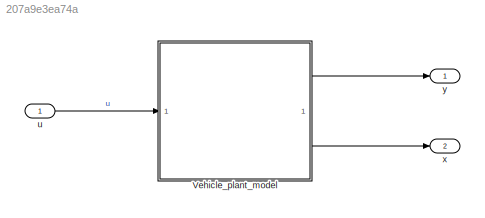
MODEL slx_207a9e3ea74a
KIND model
BLOCK [SubSystem] Vehicle_plant_model
  ReferencedSubsystem = Vehicle_plant_model
BLOCK [Inport] u
  PortDimensions = size(U, 1)
BLOCK [Outport] x
  Port = 2
BLOCK [Outport] y
LINE Vehicle_plant_model:1 -> y:1
LINE Vehicle_plant_model:2 -> x:1
LINE u:1 -> Vehicle_plant_model:1
